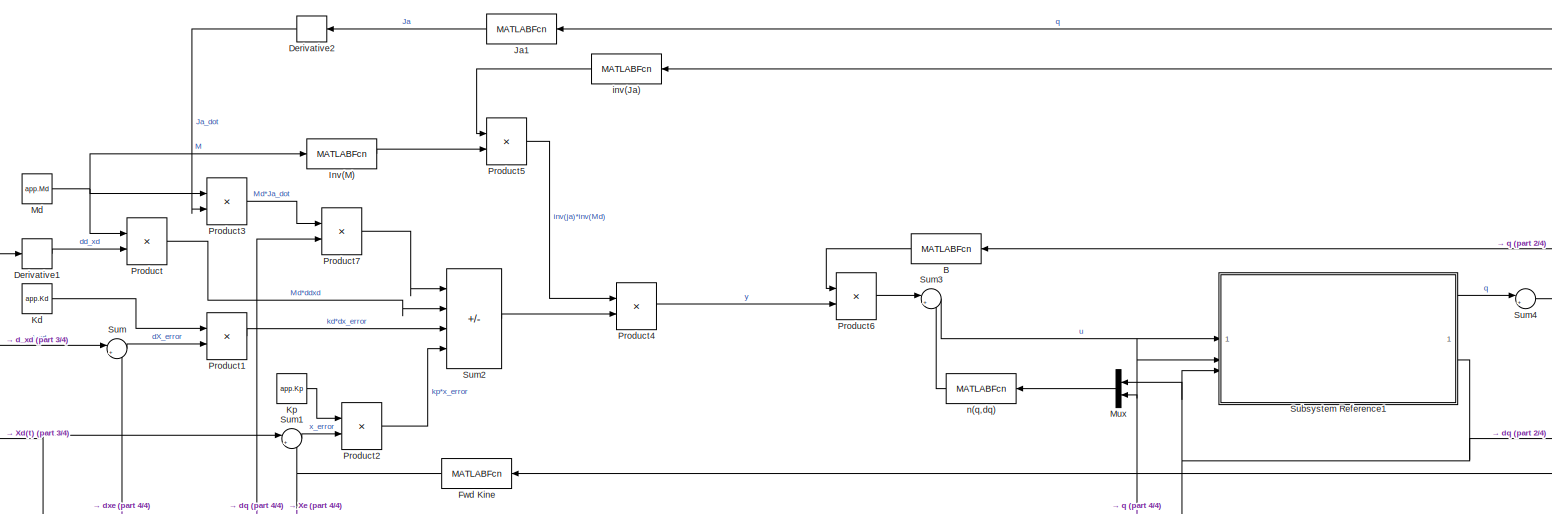
[diagram: root canvas - part 1/4, full width, middle band]
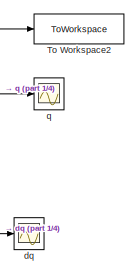
[diagram: root canvas - part 2/4, middle right region]
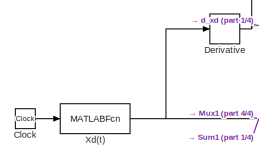
[diagram: root canvas - part 3/4, middle left region]
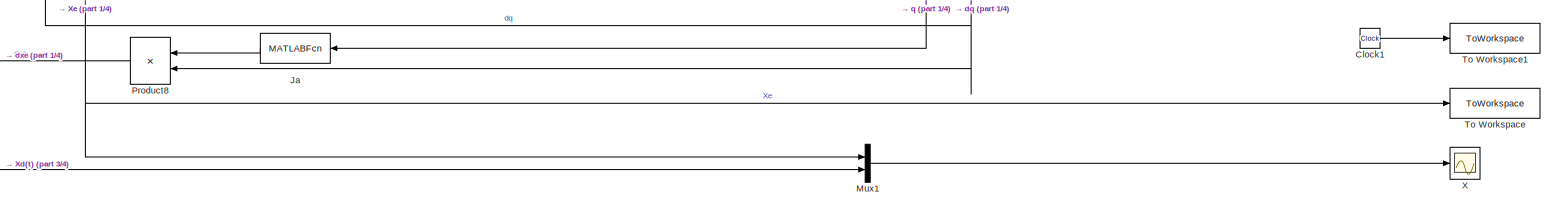
[diagram: root canvas - part 4/4, full width, bottom band]
MODEL slx_5eaba49bd694
KIND model
CONFIG AbsTol = auto
CONFIG EnableMultiTasking = off
CONFIG FixedStep = .01
CONFIG MaxStep = .1
CONFIG MinStep = auto
CONFIG RelTol = 1e-5
CONFIG SampleTimeConstraint = Unconstrained
CONFIG SolverName = FixedStepAuto
CONFIG StartTime = 0.0
CONFIG StopTime = app.StopTime
BLOCK [MATLABFcn] B
  MATLABFcn = Generate_B(app, u)
  NameLocation = top
  Output1D = off
  OutputDimensions = [app.NumJoints,app.NumJoints]
BLOCK [Clock] Clock
BLOCK [Clock] Clock1
BLOCK [Derivative] Derivative
BLOCK [Derivative] Derivative1
BLOCK [Derivative] Derivative2
  NameLocation = top
BLOCK [MATLABFcn] Fwd Kine
  MATLABFcn = TrimUnusedDofs_rows(app,forwardKinematics(app, u))
  NameLocation = top
  Output1D = off
  OutputDimensions = [app.numActiveDofs,1]
BLOCK [MATLABFcn] Inv(M)
  MATLABFcn = inv(u)
  Output1D = off
BLOCK [MATLABFcn] Ja
  MATLABFcn = TrimUnusedDofs_rows(app,GenerateAnlyticalJacobian(app, u))
  NameLocation = top
  Output1D = off
  OutputDimensions = [app.numActiveDofs,app.NumJoints]
BLOCK [MATLABFcn] Ja1
  MATLABFcn = TrimUnusedDofs_rows(app,GenerateAnlyticalJacobian(app, u))
  NameLocation = top
  Output1D = off
  OutputDimensions = [app.numActiveDofs,app.NumJoints]
BLOCK [Constant] Kd
  Value = app.Kd
  VectorParams1D = off
BLOCK [Constant] Kp
  Value = app.Kp
  VectorParams1D = off
BLOCK [Constant] Md
  Value = app.Md
  VectorParams1D = off
BLOCK [Mux] Mux
  DisplayOption = bar
  Inputs = 2
  NameLocation = top
BLOCK [Mux] Mux1
  DisplayOption = bar
  Inputs = 2
BLOCK [Product] Product
  Multiplication = Matrix(*)
BLOCK [Product] Product1
  Multiplication = Matrix(*)
BLOCK [Product] Product2
  Multiplication = Matrix(*)
BLOCK [Product] Product3
  Multiplication = Matrix(*)
BLOCK [Product] Product4
  Multiplication = Matrix(*)
BLOCK [Product] Product5
  Multiplication = Matrix(*)
BLOCK [Product] Product6
  Multiplication = Matrix(*)
BLOCK [Product] Product7
  Multiplication = Matrix(*)
BLOCK [Product] Product8
  Multiplication = Matrix(*)
  NameLocation = top
BLOCK [SubSystem] Subsystem Reference1
  ReferencedSubsystem = ManipulatorMechanicsSubsystem
BLOCK [Sum] Sum
  Inputs = |+-
BLOCK [Sum] Sum1
  Inputs = |+-
BLOCK [Sum] Sum2
  IconShape = rectangular
  Inputs = |-+++
BLOCK [Sum] Sum3
  Inputs = |++
BLOCK [Sum] Sum4
  Inputs = |++
BLOCK [ToWorkspace] To Workspace
  FixptAsFi = on
  MaxDataPoints = inf
  SampleTime = -1
  SaveFormat = Timeseries
  VariableName = Xe
BLOCK [ToWorkspace] To Workspace1
  FixptAsFi = on
  MaxDataPoints = inf
  SampleTime = -1
  SaveFormat = Timeseries
  VariableName = SimTime
BLOCK [ToWorkspace] To Workspace2
  FixptAsFi = on
  MaxDataPoints = inf
  SampleTime = -1
  SaveFormat = Timeseries
  VariableName = q_sim
BLOCK [Scope] X
  Floating = off
  NumInputPorts = 1
  ScopeSpecificationString = Simulink.scopes.TimeScopeBlockCfg('CurrentConfiguration', extmgr.ConfigurationSet(extmgr.Configuration('Core','General UI',true),extmgr.Configuration('Core','Source UI',true),extmgr.Configuration('Sources','WiredSimulink',true),extmgr.Configuration('Visuals','Time Domain',true,'SerializedDisplays',{struct('MinYLimReal','-1.21089','MaxYLimReal','2.23961','YLabelReal','','MinYLimMag','0.00000','MaxY...<+1378ch>
BLOCK [MATLABFcn] Xd(t)
  MATLABFcn = app.Calc_Xd(u)
  Output1D = off
  OutputDimensions = [app.numActiveDofs,1]
BLOCK [Scope] dq
  Floating = off
  NumInputPorts = 1
  ScopeSpecificationString = Simulink.scopes.TimeScopeBlockCfg('CurrentConfiguration', extmgr.ConfigurationSet(extmgr.Configuration('Core','General UI',true),extmgr.Configuration('Core','Source UI',true),extmgr.Configuration('Sources','WiredSimulink',true,'DataLoggingVariableName','ScopeData3'),extmgr.Configuration('Visuals','Time Domain',true,'SerializedDisplays',{struct('MinYLimReal','-211.4361','MaxYLimReal','226.41045','Y...<+1416ch>
BLOCK [MATLABFcn] inv(Ja)
  MATLABFcn = GenerateAnalyticalJacobianPseudoInv(app, u)
  NameLocation = top
  Output1D = off
BLOCK [MATLABFcn] n(q,dq)
  MATLABFcn = Generate_n(app,u(length(u)/2+1:end) ,u(1:length(u)/2))
  NameLocation = top
  Output1D = off
  OutputDimensions = [app.NumJoints,1]
BLOCK [Scope] q
  Floating = off
  NumInputPorts = 1
  ScopeSpecificationString = Simulink.scopes.TimeScopeBlockCfg('CurrentConfiguration', extmgr.ConfigurationSet(extmgr.Configuration('Core','General UI',true),extmgr.Configuration('Core','Source UI',true),extmgr.Configuration('Sources','WiredSimulink',true,'DataLoggingVariableName','ScopeData1'),extmgr.Configuration('Visuals','Time Domain',true,'SerializedDisplays',{struct('MinYLimReal','-4.2433','MaxYLimReal','3.556','YLabelR...<+1438ch>
LINE B:1 -> Product6:1
LINE Clock1:1 -> To Workspace1:1
LINE Clock:1 -> Xd(t):1
LINE Derivative1:1 -> Product:2
LINE Derivative2:1 -> Product3:2
NET Derivative:1 -> Derivative1:1, Sum:1
NET Fwd Kine:1 -> Mux1:1, Sum1:2, To Workspace:1
LINE Inv(M):1 -> Product5:2
LINE Ja1:1 -> Derivative2:1
LINE Ja:1 -> Product8:1
LINE Kd:1 -> Product1:1
LINE Kp:1 -> Product2:1
NET Md:1 -> Inv(M):1, Product3:1, Product:1
LINE Mux1:1 -> X:1
LINE Mux:1 -> n(q,dq):1
LINE Product1:1 -> Sum2:3
LINE Product2:1 -> Sum2:4
LINE Product3:1 -> Product7:1
LINE Product4:1 -> Product6:2
LINE Product5:1 -> Product4:1
LINE Product6:1 -> Sum3:1
LINE Product7:1 -> Sum2:1
LINE Product8:1 -> Sum:2
LINE Product:1 -> Sum2:2
LINE Subsystem Reference1:1 -> Sum4:1
NET Subsystem Reference1:2 -> Mux:1, Product7:2, Product8:2, Subsystem Reference1:3, dq:1
LINE Sum1:1 -> Product2:2
LINE Sum2:1 -> Product4:2
LINE Sum3:1 -> Subsystem Reference1:1
NET Sum4:1 -> B:1, Fwd Kine:1, Ja1:1, Ja:1, Mux:2, Subsystem Reference1:2, To Workspace2:1, inv(Ja):1, q:1
LINE Sum:1 -> Product1:2
NET Xd(t):1 -> Derivative:1, Mux1:2, Sum1:1
LINE inv(Ja):1 -> Product5:1
LINE n(q,dq):1 -> Sum3:2
note: NET lines group one-source signal fan-out (src -> all destinations, sorted); 1:1 wires keep LINE
